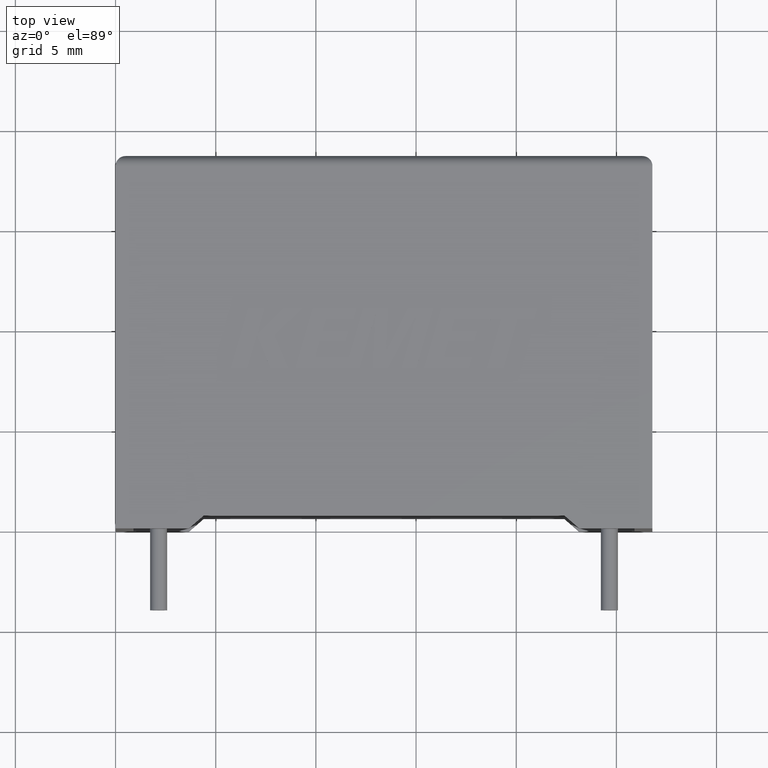
[diagram: clean part render]
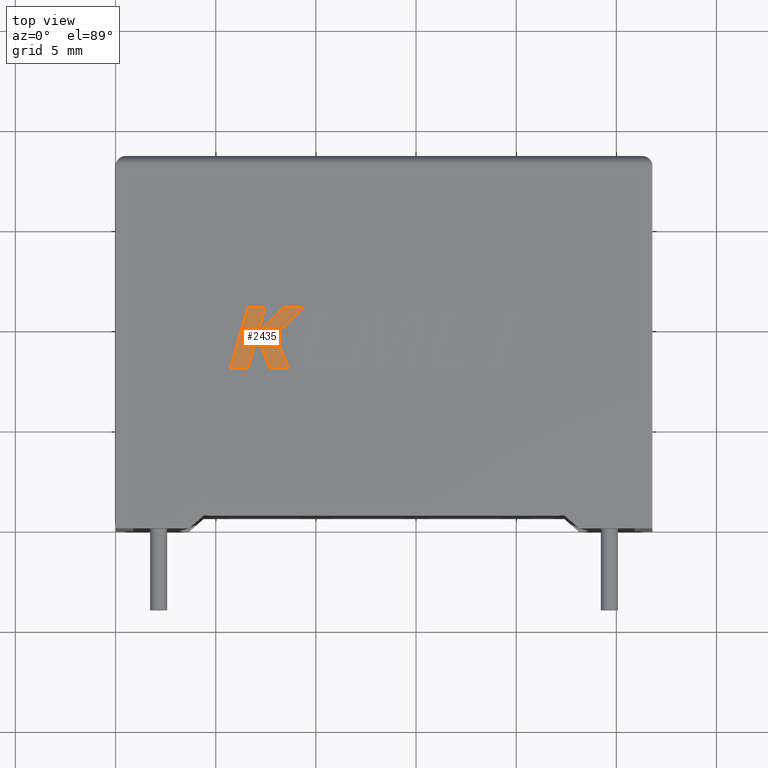
[diagram: same view with one face highlighted and labeled with its STEP entity id]
A machine part, top view. The second image highlights one B-rep face of the part: STEP entity #2435.
In plain terms, the highlighted planar face has unit normal (0, 0, -1).
Its self-contained STEP definition (entity closure, byte-faithful):
#63 = VECTOR ( 'NONE', #1633, 1000.000000000000000 ) ;
#74 = DIRECTION ( 'NONE',  ( 0.3725077383643967122, -0.9280290862137037244, 0.000000000000000000 ) ) ;
#81 = LINE ( 'NONE', #1013, #2297 ) ;
#96 = CARTESIAN_POINT ( 'NONE',  ( 7.712867765179383994, 8.003579999999908878, 10.20499999999999829 ) ) ;
#102 = LINE ( 'NONE', #1470, #2851 ) ;
#142 = CARTESIAN_POINT ( 'NONE',  ( 8.364086808272448437, 11.00540514629475375, 10.20499999999999829 ) ) ;
#179 = CARTESIAN_POINT ( 'NONE',  ( 6.600552641561402645, 11.00540514629475375, 10.20499999999999829 ) ) ;
#181 = DIRECTION ( 'NONE',  ( 0.000000000000000000, 0.000000000000000000, -1.000000000000000000 ) ) ;
#184 = LINE ( 'NONE', #2085, #63 ) ;
#286 = CARTESIAN_POINT ( 'NONE',  ( 7.088337134072133061, 9.725310847691151395, 10.20499999999999829 ) ) ;
#389 = ORIENTED_EDGE ( 'NONE', *, *, #1228, .T. ) ;
#401 = DIRECTION ( 'NONE',  ( -1.000000000000000000, -0.000000000000000000, -0.000000000000000000 ) ) ;
#439 = LINE ( 'NONE', #3014, #2386 ) ;
#446 = CARTESIAN_POINT ( 'NONE',  ( 9.351959477599811166, 11.00540514629475375, 10.20499999999999829 ) ) ;
#465 = CARTESIAN_POINT ( 'NONE',  ( 7.455275350617054819, 11.00540514629475375, 10.20499999999999829 ) ) ;
#483 = EDGE_CURVE ( 'NONE', #788, #2054, #3013, .T. ) ;
#536 = CARTESIAN_POINT ( 'NONE',  ( 6.591461786366087594, 8.003579999999905326, 10.20499999999999829 ) ) ;
#565 = ORIENTED_EDGE ( 'NONE', *, *, #951, .T. ) ;
#614 = CARTESIAN_POINT ( 'NONE',  ( 7.455275350617054819, 11.00540514629475375, 10.20499999999999829 ) ) ;
#626 = EDGE_CURVE ( 'NONE', #2188, #2779, #102, .T. ) ;
#759 = EDGE_CURVE ( 'NONE', #2788, #832, #3011, .T. ) ;
#760 = CARTESIAN_POINT ( 'NONE',  ( 9.351959477599811166, 11.00540514629475375, 10.20499999999999829 ) ) ;
#787 = EDGE_CURVE ( 'NONE', #2030, #2582, #2578, .T. ) ;
#788 = VERTEX_POINT ( 'NONE', #446 ) ;
#814 = VERTEX_POINT ( 'NONE', #1088 ) ;
#832 = VERTEX_POINT ( 'NONE', #2368 ) ;
#860 = CARTESIAN_POINT ( 'NONE',  ( -0.3258222201975293775, -1.712352143479580979, 10.20499999999999474 ) ) ;
#868 = CARTESIAN_POINT ( 'NONE',  ( 7.712867765179383994, 8.003579999999908878, 10.20499999999999829 ) ) ;
#921 = EDGE_LOOP ( 'NONE', ( #2462, #3015, #2082, #389, #2329, #2867, #565, #2260, #1028, #3042, #1567 ) ) ;
#951 = EDGE_CURVE ( 'NONE', #2779, #788, #2693, .T. ) ;
#985 = VERTEX_POINT ( 'NONE', #868 ) ;
#1012 = LINE ( 'NONE', #286, #2854 ) ;
#1013 = CARTESIAN_POINT ( 'NONE',  ( 6.600552641561402645, 11.00540514629475375, 10.20499999999999829 ) ) ;
#1022 = LINE ( 'NONE', #96, #2985 ) ;
#1028 = ORIENTED_EDGE ( 'NONE', *, *, #2676, .T. ) ;
#1088 = CARTESIAN_POINT ( 'NONE',  ( 6.591461786366087594, 8.003579999999905326, 10.20499999999999829 ) ) ;
#1228 = EDGE_CURVE ( 'NONE', #1369, #985, #1022, .T. ) ;
#1308 = VECTOR ( 'NONE', #2813, 1000.000000000000114 ) ;
#1353 = DIRECTION ( 'NONE',  ( 0.2755520632520601643, 0.9612861490927312458, 0.000000000000000000 ) ) ;
#1369 = VERTEX_POINT ( 'NONE', #1464 ) ;
#1444 = EDGE_CURVE ( 'NONE', #985, #2188, #184, .T. ) ;
#1447 = VECTOR ( 'NONE', #2017, 1000.000000000000114 ) ;
#1464 = CARTESIAN_POINT ( 'NONE',  ( 7.058627567597253183, 9.633489583602932171, 10.20499999999999829 ) ) ;
#1470 = CARTESIAN_POINT ( 'NONE',  ( 7.950617296654606925, 9.633489583602953488, 10.20499999999999829 ) ) ;
#1472 = DIRECTION ( 'NONE',  ( 1.000000000000000000, -1.104435275910379373E-13, 0.000000000000000000 ) ) ;
#1511 = DIRECTION ( 'NONE',  ( -0.7059037656364501867, -0.7083077534943971187, -0.000000000000000000 ) ) ;
#1521 = EDGE_CURVE ( 'NONE', #814, #1369, #439, .T. ) ;
#1567 = ORIENTED_EDGE ( 'NONE', *, *, #2431, .T. ) ;
#1603 = VECTOR ( 'NONE', #1353, 1000.000000000000000 ) ;
#1617 = PLANE ( 'NONE',  #2605 ) ;
#1633 = DIRECTION ( 'NONE',  ( 1.000000000000000000, 0.000000000000000000, 0.000000000000000000 ) ) ;
#1726 = DIRECTION ( 'NONE',  ( -0.3829140317376763525, 0.9237839814038765196, 0.000000000000000000 ) ) ;
#1819 = CARTESIAN_POINT ( 'NONE',  ( 7.950617296654606925, 9.633489583602953488, 10.20499999999999829 ) ) ;
#1839 = DIRECTION ( 'NONE',  ( 0.2755265765475025663, 0.9612934544747576693, 0.000000000000000000 ) ) ;
#1952 = VECTOR ( 'NONE', #401, 1000.000000000000000 ) ;
#1971 = DIRECTION ( 'NONE',  ( -1.000000000000000000, -0.000000000000000000, -0.000000000000000000 ) ) ;
#2017 = DIRECTION ( 'NONE',  ( 0.7145695586382624365, 0.6995643972269592892, 0.000000000000000000 ) ) ;
#2030 = VERTEX_POINT ( 'NONE', #2133 ) ;
#2035 = CARTESIAN_POINT ( 'NONE',  ( 5.737879999999999647, 8.003580000000001249, 10.20499999999999829 ) ) ;
#2054 = VERTEX_POINT ( 'NONE', #142 ) ;
#2072 = FACE_OUTER_BOUND ( 'NONE', #921, .T. ) ;
#2082 = ORIENTED_EDGE ( 'NONE', *, *, #1521, .T. ) ;
#2085 = CARTESIAN_POINT ( 'NONE',  ( 8.626224649227280494, 8.003579999999908878, 10.20499999999999829 ) ) ;
#2133 = CARTESIAN_POINT ( 'NONE',  ( 7.088337134072133061, 9.725310847691151395, 10.20499999999999829 ) ) ;
#2188 = VERTEX_POINT ( 'NONE', #3005 ) ;
#2260 = ORIENTED_EDGE ( 'NONE', *, *, #483, .T. ) ;
#2297 = VECTOR ( 'NONE', #1971, 1000.000000000000000 ) ;
#2298 = DIRECTION ( 'NONE',  ( -1.000000000000000000, 0.000000000000000000, 0.000000000000000000 ) ) ;
#2329 = ORIENTED_EDGE ( 'NONE', *, *, #1444, .T. ) ;
#2368 = CARTESIAN_POINT ( 'NONE',  ( 5.737879999999999647, 8.003580000000001249, 10.20499999999999829 ) ) ;
#2386 = VECTOR ( 'NONE', #1839, 1000.000000000000114 ) ;
#2417 = EDGE_CURVE ( 'NONE', #832, #814, #2669, .T. ) ;
#2431 = EDGE_CURVE ( 'NONE', #2582, #2788, #81, .T. ) ;
#2435 = ADVANCED_FACE ( 'NONE', ( #2072 ), #1617, .F. ) ;
#2462 = ORIENTED_EDGE ( 'NONE', *, *, #759, .T. ) ;
#2528 = CARTESIAN_POINT ( 'NONE',  ( 8.364086808272448437, 11.00540514629475375, 10.20499999999999829 ) ) ;
#2578 = LINE ( 'NONE', #614, #1603 ) ;
#2582 = VERTEX_POINT ( 'NONE', #465 ) ;
#2605 = AXIS2_PLACEMENT_3D ( 'NONE', #860, #181, #2298 ) ;
#2669 = LINE ( 'NONE', #536, #2846 ) ;
#2676 = EDGE_CURVE ( 'NONE', #2054, #2030, #1012, .T. ) ;
#2693 = LINE ( 'NONE', #760, #1447 ) ;
#2779 = VERTEX_POINT ( 'NONE', #1819 ) ;
#2788 = VERTEX_POINT ( 'NONE', #179 ) ;
#2813 = DIRECTION ( 'NONE',  ( -0.2762033010252004650, -0.9610992334315860974, -0.000000000000000000 ) ) ;
#2846 = VECTOR ( 'NONE', #1472, 1000.000000000000000 ) ;
#2851 = VECTOR ( 'NONE', #1726, 1000.000000000000114 ) ;
#2854 = VECTOR ( 'NONE', #1511, 1000.000000000000114 ) ;
#2867 = ORIENTED_EDGE ( 'NONE', *, *, #626, .T. ) ;
#2985 = VECTOR ( 'NONE', #74, 1000.000000000000114 ) ;
#3005 = CARTESIAN_POINT ( 'NONE',  ( 8.626224649227280494, 8.003579999999908878, 10.20499999999999829 ) ) ;
#3011 = LINE ( 'NONE', #2035, #1308 ) ;
#3013 = LINE ( 'NONE', #2528, #1952 ) ;
#3014 = CARTESIAN_POINT ( 'NONE',  ( 7.058627567597253183, 9.633489583602932171, 10.20499999999999829 ) ) ;
#3015 = ORIENTED_EDGE ( 'NONE', *, *, #2417, .T. ) ;
#3042 = ORIENTED_EDGE ( 'NONE', *, *, #787, .T. ) ;